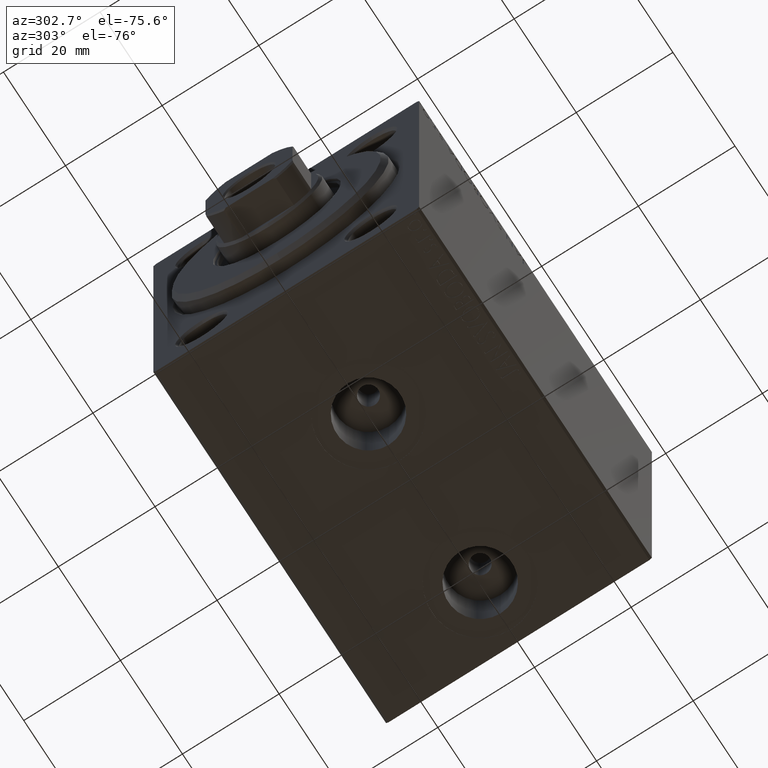
[diagram: clean part render]
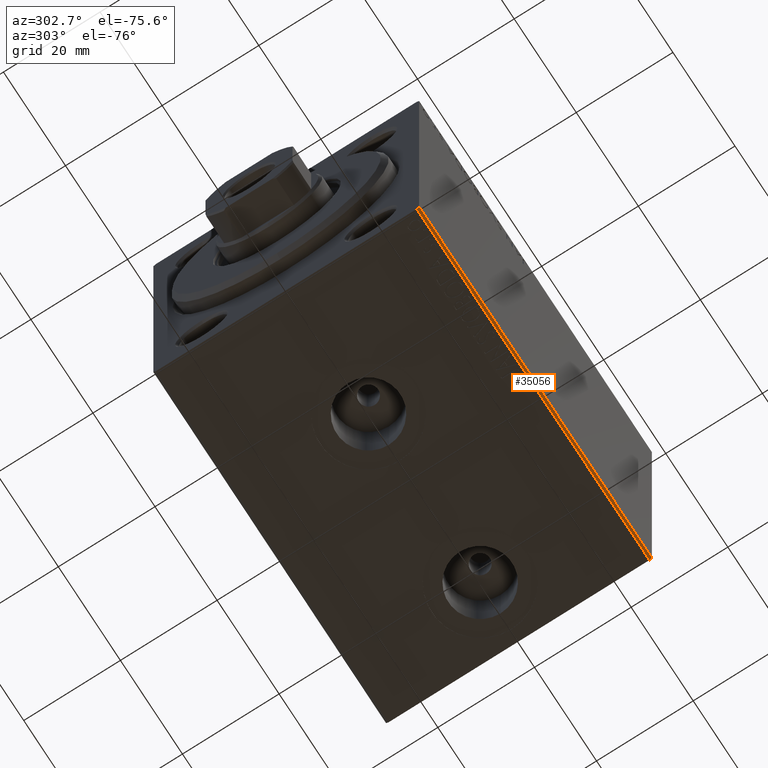
[diagram: same view with one face highlighted and labeled with its STEP entity id]
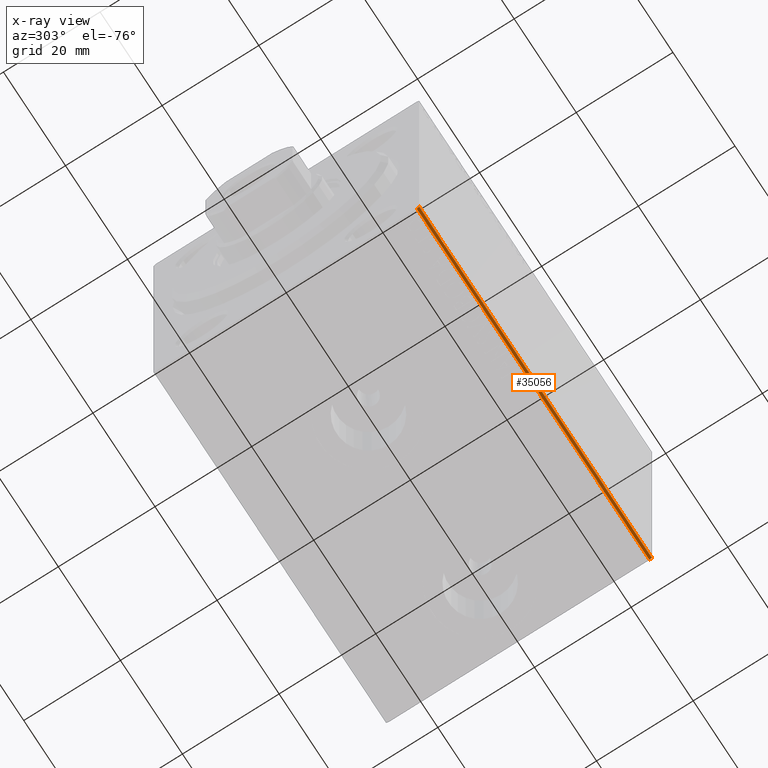
[diagram: x-ray of the same camera — body ghosted, the highlighted face saturated]
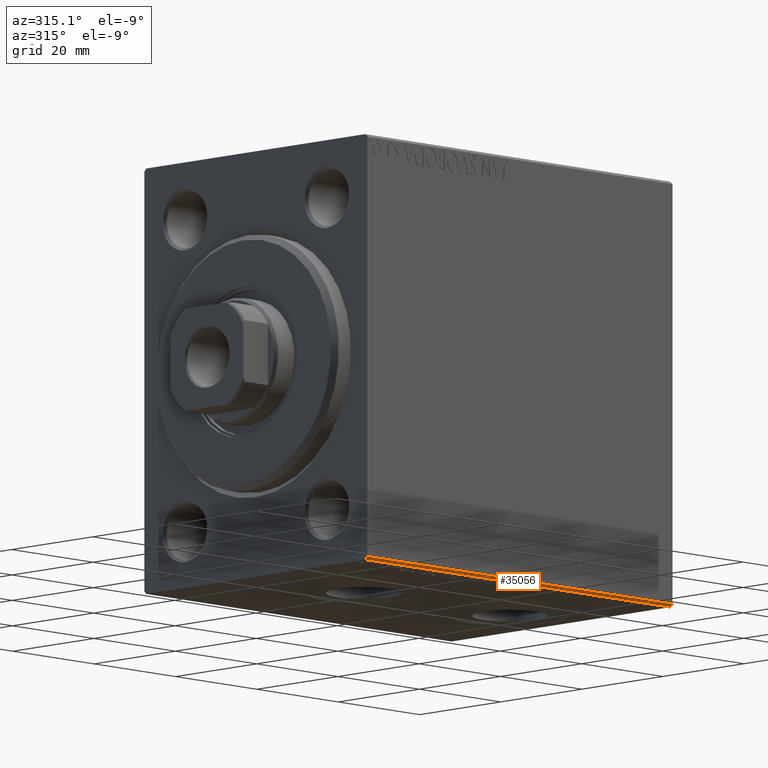
[diagram: same view with one face highlighted and labeled with its STEP entity id]
A machine part, auxiliary view. The second image highlights one B-rep face of the part: STEP entity #35056.
The next image is the same camera in x-ray: the body ghosted, the highlighted face saturated — about 0% of this face is hidden behind the body in this view.
A second angle (auxiliary view) of the same face is appended — the face is thin or edge-on in the first view.
In plain terms, the highlighted planar face has unit normal (0, 0.7071, 0.7071).
Its self-contained STEP definition (entity closure, byte-faithful):
#1836 = CARTESIAN_POINT ( 'NONE',  ( 0.000000000000000000, -26.99999999999999645, -37.50000000000000000 ) ) ;
#6485 = EDGE_CURVE ( 'NONE', #34258, #20159, #28331, .T. ) ;
#9270 = CARTESIAN_POINT ( 'NONE',  ( 75.00000000000000000, -27.49999999999999645, -37.00000000000000000 ) ) ;
#9640 = EDGE_CURVE ( 'NONE', #19833, #43212, #43456, .T. ) ;
#9669 = ORIENTED_EDGE ( 'NONE', *, *, #22109, .F. ) ;
#10664 = VECTOR ( 'NONE', #25334, 1000.000000000000000 ) ;
#11446 = ORIENTED_EDGE ( 'NONE', *, *, #6485, .F. ) ;
#13308 = CARTESIAN_POINT ( 'NONE',  ( 75.00000000000000000, -26.99999999999999645, -37.50000000000000000 ) ) ;
#13362 = ORIENTED_EDGE ( 'NONE', *, *, #9640, .F. ) ;
#15130 = CARTESIAN_POINT ( 'NONE',  ( 75.00000000000000000, -26.99999999999999645, -37.50000000000000000 ) ) ;
#16901 = FACE_OUTER_BOUND ( 'NONE', #18187, .T. ) ;
#18187 = EDGE_LOOP ( 'NONE', ( #13362, #23585, #11446, #9669 ) ) ;
#19833 = VERTEX_POINT ( 'NONE', #21274 ) ;
#20159 = VERTEX_POINT ( 'NONE', #35102 ) ;
#21274 = CARTESIAN_POINT ( 'NONE',  ( 75.00000000000000000, -27.49999999999999645, -37.00000000000000000 ) ) ;
#22109 = EDGE_CURVE ( 'NONE', #43212, #34258, #35423, .T. ) ;
#22627 = VECTOR ( 'NONE', #32928, 1000.000000000000114 ) ;
#23585 = ORIENTED_EDGE ( 'NONE', *, *, #43297, .F. ) ;
#25334 = DIRECTION ( 'NONE',  ( -1.000000000000000000, 0.000000000000000000, 0.000000000000000000 ) ) ;
#25410 = DIRECTION ( 'NONE',  ( -0.000000000000000000, -0.7071067811865474617, 0.7071067811865474617 ) ) ;
#26845 = VECTOR ( 'NONE', #25410, 1000.000000000000114 ) ;
#26981 = DIRECTION ( 'NONE',  ( -1.000000000000000000, -0.000000000000000000, 0.000000000000000000 ) ) ;
#28331 = LINE ( 'NONE', #1836, #26845 ) ;
#32928 = DIRECTION ( 'NONE',  ( -0.000000000000000000, 0.7071067811865474617, -0.7071067811865474617 ) ) ;
#33054 = DIRECTION ( 'NONE',  ( 1.000000000000000000, 0.000000000000000000, 0.000000000000000000 ) ) ;
#33483 = PLANE ( 'NONE',  #41737 ) ;
#34258 = VERTEX_POINT ( 'NONE', #36080 ) ;
#35056 = ADVANCED_FACE ( 'NONE', ( #16901 ), #33483, .F. ) ;
#35102 = CARTESIAN_POINT ( 'NONE',  ( 0.000000000000000000, -27.49999999999999645, -37.00000000000000000 ) ) ;
#35423 = LINE ( 'NONE', #38353, #10664 ) ;
#36076 = CARTESIAN_POINT ( 'NONE',  ( 75.00000000000000000, -32.24999999999999289, -32.24999999999999289 ) ) ;
#36080 = CARTESIAN_POINT ( 'NONE',  ( 0.000000000000000000, -26.99999999999999645, -37.50000000000000000 ) ) ;
#37547 = VECTOR ( 'NONE', #33054, 1000.000000000000000 ) ;
#38353 = CARTESIAN_POINT ( 'NONE',  ( 75.00000000000000000, -26.99999999999999645, -37.50000000000000000 ) ) ;
#40222 = LINE ( 'NONE', #9270, #37547 ) ;
#41737 = AXIS2_PLACEMENT_3D ( 'NONE', #13308, #44020, #26981 ) ;
#43212 = VERTEX_POINT ( 'NONE', #15130 ) ;
#43297 = EDGE_CURVE ( 'NONE', #20159, #19833, #40222, .T. ) ;
#43456 = LINE ( 'NONE', #36076, #22627 ) ;
#44020 = DIRECTION ( 'NONE',  ( 0.000000000000000000, 0.7071067811865475727, 0.7071067811865475727 ) ) ;